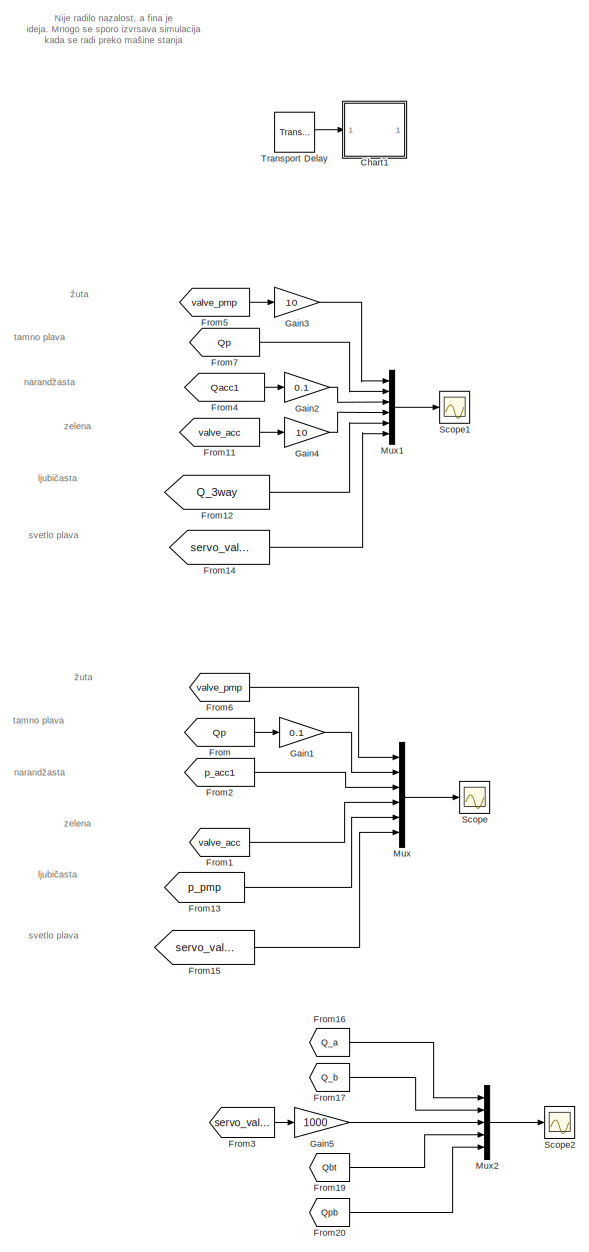
[diagram: root canvas - part 1/2, right side, full height]
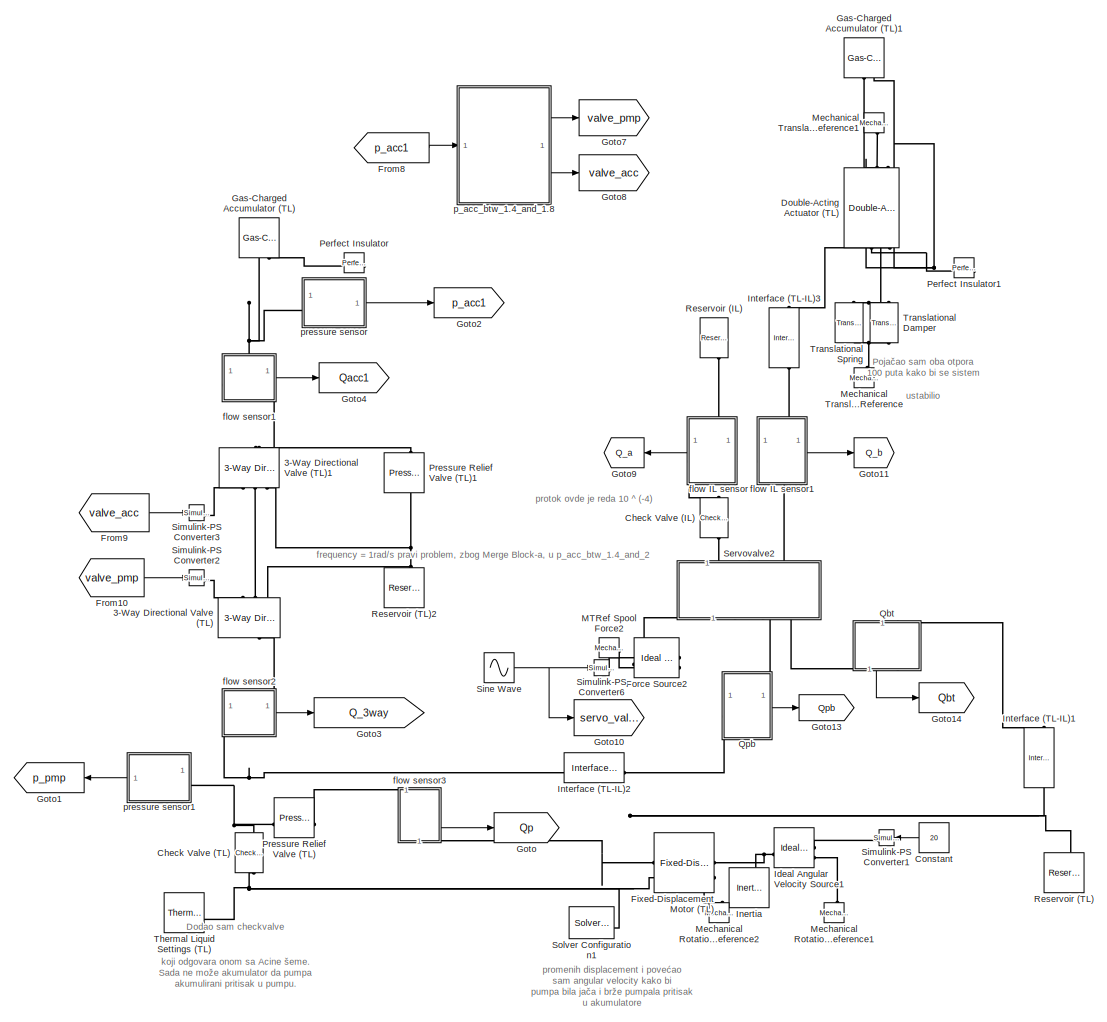
[diagram: root canvas - part 2/2, left side, full height]
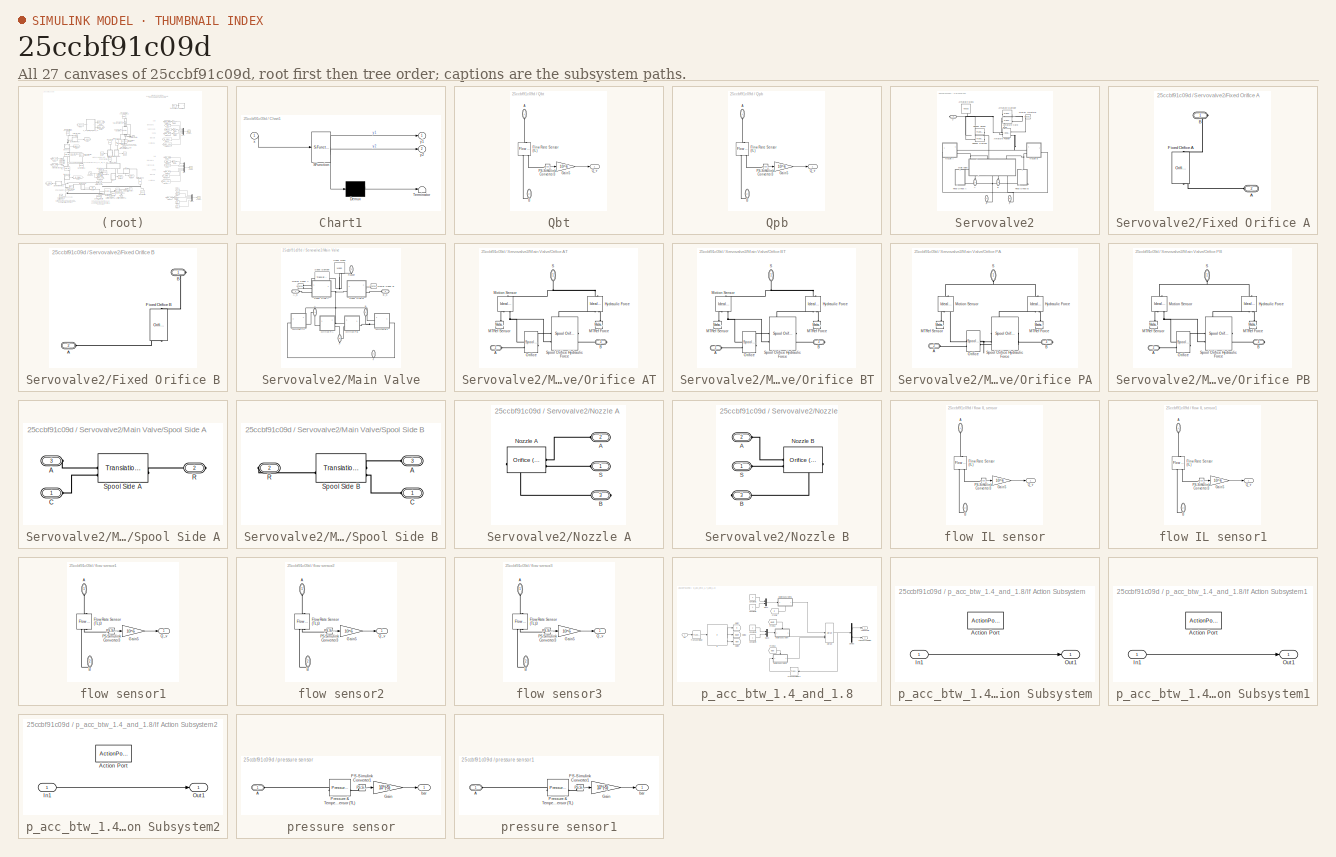
[diagram: thumbnail index - all 27 canvases of the model, root first then tree order]
MODEL slx_25ccbf91c09d
KIND model
CONFIG AbsTol = auto
CONFIG EnableMultiTasking = off
CONFIG FixedStep = auto
CONFIG MaxStep = auto
CONFIG MinStep = auto
CONFIG RelTol = 1e-3
CONFIG SampleTimeConstraint = Unconstrained
CONFIG SolverName = VariableStepAuto
CONFIG StartTime = 0.0
CONFIG StopTime = 30
BLOCK [Reference] 3-Way Directional Valve (TL)  REF=SimscapeFluids_lib/Thermal Liquid/Valves & Orifices/Directional Control
Valves/3-Way Directional
Valve (TL)
  NameLocation = left
  SourceBlock = SimscapeFluids_lib/Thermal Liquid/Valves & Orifices/Directional Control\nValves/3-Way Directional\nValve (TL)
  SourceType = 3-Way Directional\nValve (TL)
BLOCK [Reference] 3-Way Directional Valve (TL)1  REF=SimscapeFluids_lib/Thermal Liquid/Valves & Orifices/Directional Control
Valves/3-Way Directional
Valve (TL)
  NameLocation = right
  SourceBlock = SimscapeFluids_lib/Thermal Liquid/Valves & Orifices/Directional Control\nValves/3-Way Directional\nValve (TL)
  SourceType = 3-Way Directional\nValve (TL)
BLOCK [SubSystem] Chart1
  Commented = on
  ErrorFcn = Stateflow.Translate.translate
  PermitHierarchicalResolution = ExplicitOnly
  SFBlockType = Chart
  TreatAsAtomicUnit = on
BLOCK [Demux] Chart1/ Demux 
  Outputs = 1
BLOCK [S-Function] Chart1/ SFunction 
  EnableBusSupport = on
  FunctionName = sf_sfun
  PortCounts = [1 3]
  SFcnIsStateOwnerBlock = off
  SFunctionDeploymentMode = off
  Tag = Stateflow S-Function 1
BLOCK [Terminator] Chart1/ Terminator 
BLOCK [Inport] Chart1/x
BLOCK [Outport] Chart1/y1
BLOCK [Outport] Chart1/y2
  Port = 2
BLOCK [Reference] Check Valve (IL)  REF=SimscapeFluids_lib/Isothermal Liquid/Valves & Orifices/Directional Control
Valves/Check Valve (IL)
  NameLocation = left
  SourceBlock = SimscapeFluids_lib/Isothermal Liquid/Valves & Orifices/Directional Control\nValves/Check Valve (IL)
  SourceType = Check Valve (IL)
BLOCK [Reference] Check Valve (TL)  REF=SimscapeFluids_lib/Thermal Liquid/Valves & Orifices/Directional Control
Valves/Check Valve (TL)
  NameLocation = right
  SourceBlock = SimscapeFluids_lib/Thermal Liquid/Valves & Orifices/Directional Control\nValves/Check Valve (TL)
  SourceType = Check Valve (TL)
BLOCK [Constant] Constant
  NameLocation = top
  Value = 20
BLOCK [Reference] Double-Acting Actuator (TL)  REF=SimscapeFluids_lib/Thermal Liquid/Actuators/Double-Acting
Actuator (TL)
  NameLocation = left
  SourceBlock = SimscapeFluids_lib/Thermal Liquid/Actuators/Double-Acting\nActuator (TL)
  SourceType = Double-Acting\nActuator (TL)
BLOCK [Reference] Fixed-Displacement Motor (TL)  REF=SimscapeFluids_lib/Thermal Liquid/Pumps & Motors/Fixed-Displacement
Motor (TL)
  SourceBlock = SimscapeFluids_lib/Thermal Liquid/Pumps & Motors/Fixed-Displacement\nMotor (TL)
  SourceType = Fixed-Displacement\nMotor (TL)
BLOCK [Reference] Force Source2  REF=fl_lib/Mechanical/Mechanical Sources/Ideal Force Source
  SourceBlock = fl_lib/Mechanical/Mechanical Sources/Ideal Force Source
  SourceType = Ideal Force Source
  Tag = Factory Generic
BLOCK [From] From
  GotoTag = Qp
BLOCK [From] From1
  GotoTag = valve_acc
BLOCK [From] From10
  GotoTag = valve_pmp
BLOCK [From] From11
  GotoTag = valve_acc
BLOCK [From] From12
  GotoTag = Q_3way
BLOCK [From] From13
  GotoTag = p_pmp
BLOCK [From] From14
  GotoTag = servo_valve
BLOCK [From] From15
  GotoTag = servo_valve
BLOCK [From] From16
  GotoTag = Q_a
BLOCK [From] From17
  GotoTag = Q_b
BLOCK [From] From19
  GotoTag = Qbt
BLOCK [From] From2
  GotoTag = p_acc1
BLOCK [From] From20
  GotoTag = Qpb
BLOCK [From] From3
  GotoTag = servo_valve
BLOCK [From] From4
  GotoTag = Qacc1
BLOCK [From] From5
  GotoTag = valve_pmp
BLOCK [From] From6
  GotoTag = valve_pmp
BLOCK [From] From7
  GotoTag = Qp
BLOCK [From] From8
  GotoTag = p_acc1
BLOCK [From] From9
  GotoTag = valve_acc
BLOCK [Gain] Gain1
  Gain = 0.1
BLOCK [Gain] Gain2
  Gain = 0.1
BLOCK [Gain] Gain3
  Gain = 10
BLOCK [Gain] Gain4
  Gain = 10
BLOCK [Gain] Gain5
  Gain = 1000
BLOCK [Reference] Gas-Charged Accumulator (TL)  REF=SimscapeFluids_lib/Thermal Liquid/Tanks & Accumulators/Gas-Charged
Accumulator (TL)
  NameLocation = right
  SourceBlock = SimscapeFluids_lib/Thermal Liquid/Tanks & Accumulators/Gas-Charged\nAccumulator (TL)
  SourceType = Gas-Charged\nAccumulator (TL)
BLOCK [Reference] Gas-Charged Accumulator (TL)1  REF=SimscapeFluids_lib/Thermal Liquid/Tanks & Accumulators/Gas-Charged
Accumulator (TL)
  NameLocation = right
  SourceBlock = SimscapeFluids_lib/Thermal Liquid/Tanks & Accumulators/Gas-Charged\nAccumulator (TL)
  SourceType = Gas-Charged\nAccumulator (TL)
BLOCK [Goto] Goto
  GotoTag = Qp
BLOCK [Goto] Goto1
  GotoTag = p_pmp
  NameLocation = top
BLOCK [Goto] Goto10
  GotoTag = servo_valve
BLOCK [Goto] Goto11
  GotoTag = Q_b
BLOCK [Goto] Goto13
  GotoTag = Qpb
BLOCK [Goto] Goto14
  GotoTag = Qbt
BLOCK [Goto] Goto2
  GotoTag = p_acc1
BLOCK [Goto] Goto3
  GotoTag = Q_3way
BLOCK [Goto] Goto4
  GotoTag = Qacc1
BLOCK [Goto] Goto7
  GotoTag = valve_pmp
BLOCK [Goto] Goto8
  GotoTag = valve_acc
BLOCK [Goto] Goto9
  GotoTag = Q_a
  NameLocation = top
BLOCK [Reference] Ideal Angular Velocity Source1  REF=fl_lib/Mechanical/Mechanical Sources/Ideal Angular
Velocity Source
  SourceBlock = fl_lib/Mechanical/Mechanical Sources/Ideal Angular\nVelocity Source
  SourceType = Ideal Angular\nVelocity Source
BLOCK [Reference] Inertia  REF=fl_lib/Mechanical/Rotational Elements/Inertia
  NameLocation = right
  SourceBlock = fl_lib/Mechanical/Rotational Elements/Inertia
  SourceType = Inertia
BLOCK [Reference] Interface (TL-IL)1  REF=SimscapeFluids_lib/Fluid Network
Interfaces/Interface (TL-IL)
  NameLocation = right
  SourceBlock = SimscapeFluids_lib/Fluid Network\nInterfaces/Interface (TL-IL)
  SourceType = Interface (TL-IL)
BLOCK [Reference] Interface (TL-IL)2  REF=SimscapeFluids_lib/Fluid Network
Interfaces/Interface (TL-IL)
  SourceBlock = SimscapeFluids_lib/Fluid Network\nInterfaces/Interface (TL-IL)
  SourceType = Interface (TL-IL)
BLOCK [Reference] Interface (TL-IL)3  REF=SimscapeFluids_lib/Fluid Network
Interfaces/Interface (TL-IL)
  NameLocation = left
  SourceBlock = SimscapeFluids_lib/Fluid Network\nInterfaces/Interface (TL-IL)
  SourceType = Interface (TL-IL)
BLOCK [Reference] MTRef Spool Force2  REF=fl_lib/Mechanical/Translational
Elements/Mechanical
Translational
Reference
  SourceBlock = fl_lib/Mechanical/Translational\nElements/Mechanical\nTranslational\nReference
  SourceType = Mechanical\nTranslational\nReference
  Tag = Factory Generic
BLOCK [Reference] Mechanical Rotational Reference1  REF=fl_lib/Mechanical/Rotational Elements/Mechanical
Rotational Reference
  NameLocation = right
  SourceBlock = fl_lib/Mechanical/Rotational Elements/Mechanical\nRotational Reference
  SourceType = Mechanical\nRotational Reference
BLOCK [Reference] Mechanical Rotational Reference2  REF=fl_lib/Mechanical/Rotational Elements/Mechanical
Rotational Reference
  NameLocation = right
  SourceBlock = fl_lib/Mechanical/Rotational Elements/Mechanical\nRotational Reference
  SourceType = Mechanical\nRotational Reference
BLOCK [Reference] Mechanical Translational Reference  REF=fl_lib/Mechanical/Translational
Elements/Mechanical
Translational
Reference
  NameLocation = right
  SourceBlock = fl_lib/Mechanical/Translational\nElements/Mechanical\nTranslational\nReference
  SourceType = Mechanical\nTranslational\nReference
BLOCK [Reference] Mechanical Translational Reference1  REF=fl_lib/Mechanical/Translational
Elements/Mechanical
Translational
Reference
  NameLocation = left
  SourceBlock = fl_lib/Mechanical/Translational\nElements/Mechanical\nTranslational\nReference
  SourceType = Mechanical\nTranslational\nReference
BLOCK [Mux] Mux
  DisplayOption = bar
  Inputs = 6
BLOCK [Mux] Mux1
  DisplayOption = bar
  Inputs = 6
BLOCK [Mux] Mux2
  DisplayOption = bar
  Inputs = 5
BLOCK [Reference] Perfect Insulator  REF=fl_lib/Thermal/Thermal Elements/Perfect Insulator
  NameLocation = top
  SourceBlock = fl_lib/Thermal/Thermal Elements/Perfect Insulator
  SourceType = Perfect Insulator
BLOCK [Reference] Perfect Insulator1  REF=fl_lib/Thermal/Thermal Elements/Perfect Insulator
  NameLocation = top
  SourceBlock = fl_lib/Thermal/Thermal Elements/Perfect Insulator
  SourceType = Perfect Insulator
BLOCK [Reference] Pressure Relief Valve (TL)  REF=SimscapeFluids_lib/Thermal Liquid/Valves & Orifices/Pressure Control
Valves/Pressure Relief
Valve (TL)
  SourceBlock = SimscapeFluids_lib/Thermal Liquid/Valves & Orifices/Pressure Control\nValves/Pressure Relief\nValve (TL)
  SourceType = Pressure Relief\nValve (TL)
BLOCK [Reference] Pressure Relief Valve (TL)1  REF=SimscapeFluids_lib/Thermal Liquid/Valves & Orifices/Pressure Control
Valves/Pressure Relief
Valve (TL)
  NameLocation = left
  SourceBlock = SimscapeFluids_lib/Thermal Liquid/Valves & Orifices/Pressure Control\nValves/Pressure Relief\nValve (TL)
  SourceType = Pressure Relief\nValve (TL)
BLOCK [SubSystem] Qbt
  NameLocation = right
  PortSchema = {"entries":[{"content":{"sides":[{"content":{"connectorIds":["Out1"]},"type":"ConnectorPlacement.EquallySpacedRectSide","uuid":"6ff17596-5534-4320-afa6-0357b731a888"},{"content":{"side":"RIGHT"},"type":"ConnectorPlacement.EquallySpacedRectSide","uuid":"d0148cca-8559-4eae-a2d7-b1f870587941"},{"content":{"connectorIds":["LConn1"],"side":"TOP"},"type":"ConnectorPlacement.EquallySpacedRectSide","uuid"...<+377ch>  <repeated x3 — deduplicated; at blocks: Qbt, Qpb, flow IL sensor1>
BLOCK [PMIOPort] Qbt/A
  NameLocation = left
  Side = Left
BLOCK [PMIOPort] Qbt/B
  NameLocation = right
  Port = 2
  Side = Right
BLOCK [Reference] Qbt/Flow Rate Sensor (IL)  REF=fl_lib/Isothermal Liquid/Sensors/Flow Rate Sensor
(IL)
  NameLocation = left
  SourceBlock = fl_lib/Isothermal Liquid/Sensors/Flow Rate Sensor\n(IL)
  SourceType = Flow Rate Sensor\n(IL)
BLOCK [Gain] Qbt/Gain5
  Gain = 10^6
BLOCK [Reference] Qbt/PS-Simulink Converter3  REF=nesl_utility/PS-Simulink
Converter
  SourceBlock = nesl_utility/PS-Simulink\nConverter
  SourceType = PS-Simulink\nConverter
BLOCK [Outport] Qbt/Q_v
BLOCK [SubSystem] Qpb
  NameLocation = top
BLOCK [PMIOPort] Qpb/A
  NameLocation = left
  Side = Left
BLOCK [PMIOPort] Qpb/B
  NameLocation = right
  Port = 2
  Side = Right
BLOCK [Reference] Qpb/Flow Rate Sensor (IL)  REF=fl_lib/Isothermal Liquid/Sensors/Flow Rate Sensor
(IL)
  NameLocation = left
  SourceBlock = fl_lib/Isothermal Liquid/Sensors/Flow Rate Sensor\n(IL)
  SourceType = Flow Rate Sensor\n(IL)
BLOCK [Gain] Qpb/Gain5
  Gain = 10^6
BLOCK [Reference] Qpb/PS-Simulink Converter3  REF=nesl_utility/PS-Simulink
Converter
  SourceBlock = nesl_utility/PS-Simulink\nConverter
  SourceType = PS-Simulink\nConverter
BLOCK [Outport] Qpb/Q_v
BLOCK [Reference] Reservoir (IL)  REF=fl_lib/Isothermal Liquid/Elements/Reservoir (IL)
  NameLocation = left
  SourceBlock = fl_lib/Isothermal Liquid/Elements/Reservoir (IL)
  SourceType = Reservoir (IL)
BLOCK [Reference] Reservoir (TL)  REF=fl_lib/Thermal Liquid/Elements/Reservoir (TL)
  NameLocation = right
  SourceBlock = fl_lib/Thermal Liquid/Elements/Reservoir (TL)
  SourceType = Reservoir (TL)
BLOCK [Reference] Reservoir (TL)2  REF=fl_lib/Thermal Liquid/Elements/Reservoir (TL)
  NameLocation = right
  SourceBlock = fl_lib/Thermal Liquid/Elements/Reservoir (TL)
  SourceType = Reservoir (TL)
BLOCK [Scope] Scope
  Floating = off
  NumInputPorts = 1
  ScopeSpecificationString = Simulink.scopes.TimeScopeBlockCfg('CurrentConfiguration', extmgr.ConfigurationSet(extmgr.Configuration('Core','General UI',true),extmgr.Configuration('Core','Source UI',true),extmgr.Configuration('Sources','WiredSimulink',true),extmgr.Configuration('Visuals','Time Domain',true,'SerializedDisplays',{struct('MinYLimReal','-2.37296','MaxYLimReal','11.35662','YLabelReal','','MinYLimMag','0.00000','Max...<+1756ch>
BLOCK [Scope] Scope1
  Floating = off
  NumInputPorts = 1
  ScopeSpecificationString = Simulink.scopes.TimeScopeBlockCfg('CurrentConfiguration', extmgr.ConfigurationSet(extmgr.Configuration('Core','General UI',true),extmgr.Configuration('Core','Source UI',true),extmgr.Configuration('Sources','WiredSimulink',true,'DataLoggingVariableName','ScopeData1'),extmgr.Configuration('Visuals','Time Domain',true,'SerializedDisplays',{struct('MinYLimReal','-59.99037','MaxYLimReal','287.3217','YL...<+1687ch>
BLOCK [Scope] Scope2
  Floating = off
  NumInputPorts = 1
  ScopeSpecificationString = Simulink.scopes.TimeScopeBlockCfg('CurrentConfiguration', extmgr.ConfigurationSet(extmgr.Configuration('Core','General UI',true),extmgr.Configuration('Core','Source UI',true),extmgr.Configuration('Sources','WiredSimulink',true,'DataLoggingVariableName','ScopeData1'),extmgr.Configuration('Visuals','Time Domain',true,'SerializedDisplays',{struct('MinYLimReal','-1249.99083','MaxYLimReal','1249.99898'...<+1582ch>
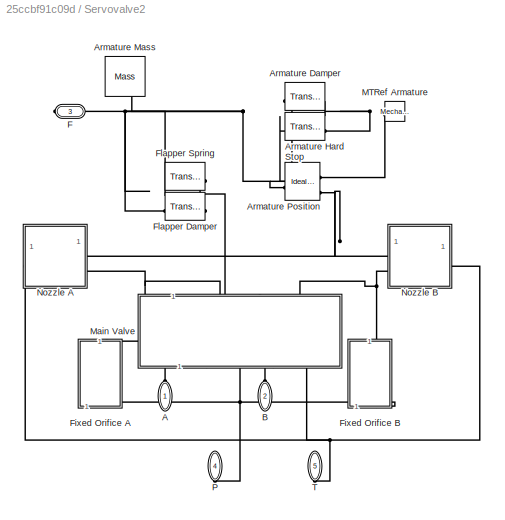
BLOCK [SubSystem] Servovalve2
  NameLocation = right
  Tag = PublishSubsystem
BLOCK [PMIOPort] Servovalve2/A
  NameLocation = left
  Side = Left
BLOCK [Reference] Servovalve2/Armature Damper  REF=fl_lib/Mechanical/Translational
Elements/Translational Damper
  NameLocation = top
  SourceBlock = fl_lib/Mechanical/Translational\nElements/Translational Damper
  SourceType = Translational Damper
  Tag = Factory Generic
BLOCK [Reference] Servovalve2/Armature Hard Stop  REF=fl_lib/Mechanical/Translational
Elements/Translational Hard
Stop
  SourceBlock = fl_lib/Mechanical/Translational\nElements/Translational Hard\nStop
  SourceType = Translational Hard\nStop
  Tag = Factory Generic
BLOCK [Reference] Servovalve2/Armature Mass  REF=fl_lib/Mechanical/Translational
Elements/Mass
  NameLocation = left
  SourceBlock = fl_lib/Mechanical/Translational\nElements/Mass
  SourceType = Mass
  Tag = Factory Generic
BLOCK [Reference] Servovalve2/Armature Position  REF=fl_lib/Mechanical/Mechanical Sensors/Ideal Translational
Motion Sensor
  SourceBlock = fl_lib/Mechanical/Mechanical Sensors/Ideal Translational\nMotion Sensor
  SourceType = Ideal Translational\nMotion Sensor
  Tag = Factory Generic
BLOCK [PMIOPort] Servovalve2/B
  NameLocation = left
  Port = 2
  Side = Left
BLOCK [PMIOPort] Servovalve2/F
  Port = 3
  Side = Right
BLOCK [SubSystem] Servovalve2/Fixed Orifice A
BLOCK [PMIOPort] Servovalve2/Fixed Orifice A/A
  Port = 2
  Side = Left
BLOCK [PMIOPort] Servovalve2/Fixed Orifice A/B
  Side = Right
BLOCK [Reference] Servovalve2/Fixed Orifice A/Fixed Orifice A  REF=SimscapeFluids_lib/Isothermal Liquid/Valves & Orifices/Orifices/Orifice (IL)
  NameLocation = left
  SourceBlock = SimscapeFluids_lib/Isothermal Liquid/Valves & Orifices/Orifices/Orifice (IL)
  SourceType = Orifice (IL)
  Tag = Factory Generic
BLOCK [SubSystem] Servovalve2/Fixed Orifice B
BLOCK [PMIOPort] Servovalve2/Fixed Orifice B/A
  Port = 2
  Side = Left
BLOCK [PMIOPort] Servovalve2/Fixed Orifice B/B
  Side = Right
BLOCK [Reference] Servovalve2/Fixed Orifice B/Fixed Orifice B  REF=SimscapeFluids_lib/Isothermal Liquid/Valves & Orifices/Orifices/Orifice (IL)
  NameLocation = right
  SourceBlock = SimscapeFluids_lib/Isothermal Liquid/Valves & Orifices/Orifices/Orifice (IL)
  SourceType = Orifice (IL)
  Tag = Factory Generic
BLOCK [Reference] Servovalve2/Flapper Damper  REF=fl_lib/Mechanical/Translational
Elements/Translational Damper
  SourceBlock = fl_lib/Mechanical/Translational\nElements/Translational Damper
  SourceType = Translational Damper
  Tag = Factory Generic
BLOCK [Reference] Servovalve2/Flapper Spring  REF=fl_lib/Mechanical/Translational
Elements/Translational Spring
  NameLocation = top
  SourceBlock = fl_lib/Mechanical/Translational\nElements/Translational Spring
  SourceType = Translational Spring
  Tag = Factory Generic
BLOCK [Reference] Servovalve2/MTRef Armature  REF=fl_lib/Mechanical/Translational
Elements/Mechanical
Translational
Reference
  NameLocation = top
  SourceBlock = fl_lib/Mechanical/Translational\nElements/Mechanical\nTranslational\nReference
  SourceType = Mechanical\nTranslational\nReference
  Tag = Factory Generic
BLOCK [SubSystem] Servovalve2/Main Valve
  NameLocation = left
  Tag = PublishSubsystem
BLOCK [PMIOPort] Servovalve2/Main Valve/A
  NameLocation = right
  Port = 4
  Side = Right
BLOCK [PMIOPort] Servovalve2/Main Valve/A_S
  Side = Left
BLOCK [PMIOPort] Servovalve2/Main Valve/B
  NameLocation = left
  Port = 6
  Side = Right
BLOCK [PMIOPort] Servovalve2/Main Valve/B_S
  Port = 3
  Side = Left
BLOCK [PMIOPort] Servovalve2/Main Valve/Flapper
  NameLocation = right
  Port = 2
  Side = Left
BLOCK [Reference] Servovalve2/Main Valve/MTRef Spool A  REF=fl_lib/Mechanical/Translational
Elements/Mechanical
Translational
Reference
  NameLocation = top
  SourceBlock = fl_lib/Mechanical/Translational\nElements/Mechanical\nTranslational\nReference
  SourceType = Mechanical\nTranslational\nReference
  Tag = Factory Generic
BLOCK [Reference] Servovalve2/Main Valve/MTRef Spool B  REF=fl_lib/Mechanical/Translational
Elements/Mechanical
Translational
Reference
  NameLocation = top
  SourceBlock = fl_lib/Mechanical/Translational\nElements/Mechanical\nTranslational\nReference
  SourceType = Mechanical\nTranslational\nReference
  Tag = Factory Generic
BLOCK [SubSystem] Servovalve2/Main Valve/Orifice AT
  Tag = PublishSubsystem
BLOCK [PMIOPort] Servovalve2/Main Valve/Orifice AT/A
  Port = 2
  Side = Left
BLOCK [PMIOPort] Servovalve2/Main Valve/Orifice AT/B
  Port = 3
  Side = Right
BLOCK [Reference] Servovalve2/Main Valve/Orifice AT/Hydraulic Force  REF=fl_lib/Mechanical/Mechanical Sources/Ideal Force Source
  NameLocation = left
  SourceBlock = fl_lib/Mechanical/Mechanical Sources/Ideal Force Source
  SourceType = Ideal Force Source
  Tag = Factory Generic
BLOCK [Reference] Servovalve2/Main Valve/Orifice AT/MTRef Force  REF=fl_lib/Mechanical/Translational
Elements/Mechanical
Translational
Reference
  NameLocation = right
  SourceBlock = fl_lib/Mechanical/Translational\nElements/Mechanical\nTranslational\nReference
  SourceType = Mechanical\nTranslational\nReference
  Tag = Factory Generic
BLOCK [Reference] Servovalve2/Main Valve/Orifice AT/MTRef Sensor  REF=fl_lib/Mechanical/Translational
Elements/Mechanical
Translational
Reference
  NameLocation = left
  SourceBlock = fl_lib/Mechanical/Translational\nElements/Mechanical\nTranslational\nReference
  SourceType = Mechanical\nTranslational\nReference
  Tag = Factory Generic
BLOCK [Reference] Servovalve2/Main Valve/Orifice AT/Motion Sensor  REF=fl_lib/Mechanical/Mechanical Sensors/Ideal Translational
Motion Sensor
  NameLocation = right
  SourceBlock = fl_lib/Mechanical/Mechanical Sensors/Ideal Translational\nMotion Sensor
  SourceType = Ideal Translational\nMotion Sensor
  Tag = Factory Generic
BLOCK [Reference] Servovalve2/Main Valve/Orifice AT/Orifice  REF=SimscapeFluids_lib/Isothermal Liquid/Valves & Orifices/Orifices/Spool Orifice (IL)
  SourceBlock = SimscapeFluids_lib/Isothermal Liquid/Valves & Orifices/Orifices/Spool Orifice (IL)
  SourceType = Spool Orifice (IL)
  Tag = Factory Generic
BLOCK [PMIOPort] Servovalve2/Main Valve/Orifice AT/S
  NameLocation = left
  Side = Left
BLOCK [Reference] Servovalve2/Main Valve/Orifice AT/Spool Orifice Hydraulic Force  REF=SimscapeFluids_lib/Isothermal Liquid/Valves & Orifices/Valve Actuators &
Forces/Spool Orifice Flow
Force (IL)
  LibrarySourceBlock = SimscapeFluids_lib/Isothermal Liquid/Valves & Orifices/Valve Actuators & Forces/Spool Orifice Flow Force (IL)
  SourceBlock = SimscapeFluids_lib/Isothermal Liquid/Valves & Orifices/Valve Actuators &\nForces/Spool Orifice Flow\nForce (IL)
  SourceType = Spool Orifice Flow\nForce (IL)
BLOCK [SubSystem] Servovalve2/Main Valve/Orifice BT
BLOCK [PMIOPort] Servovalve2/Main Valve/Orifice BT/A
  Port = 2
  Side = Left
BLOCK [PMIOPort] Servovalve2/Main Valve/Orifice BT/B
  Port = 3
  Side = Right
BLOCK [Reference] Servovalve2/Main Valve/Orifice BT/Hydraulic Force  REF=fl_lib/Mechanical/Mechanical Sources/Ideal Force Source
  NameLocation = right
  SourceBlock = fl_lib/Mechanical/Mechanical Sources/Ideal Force Source
  SourceType = Ideal Force Source
  Tag = Factory Generic
BLOCK [Reference] Servovalve2/Main Valve/Orifice BT/MTRef Force  REF=fl_lib/Mechanical/Translational
Elements/Mechanical
Translational
Reference
  NameLocation = right
  SourceBlock = fl_lib/Mechanical/Translational\nElements/Mechanical\nTranslational\nReference
  SourceType = Mechanical\nTranslational\nReference
  Tag = Factory Generic
BLOCK [Reference] Servovalve2/Main Valve/Orifice BT/MTRef Sensor  REF=fl_lib/Mechanical/Translational
Elements/Mechanical
Translational
Reference
  NameLocation = left
  SourceBlock = fl_lib/Mechanical/Translational\nElements/Mechanical\nTranslational\nReference
  SourceType = Mechanical\nTranslational\nReference
  Tag = Factory Generic
BLOCK [Reference] Servovalve2/Main Valve/Orifice BT/Motion Sensor  REF=fl_lib/Mechanical/Mechanical Sensors/Ideal Translational
Motion Sensor
  NameLocation = right
  SourceBlock = fl_lib/Mechanical/Mechanical Sensors/Ideal Translational\nMotion Sensor
  SourceType = Ideal Translational\nMotion Sensor
  Tag = Factory Generic
BLOCK [Reference] Servovalve2/Main Valve/Orifice BT/Orifice  REF=SimscapeFluids_lib/Isothermal Liquid/Valves & Orifices/Orifices/Spool Orifice (IL)
  SourceBlock = SimscapeFluids_lib/Isothermal Liquid/Valves & Orifices/Orifices/Spool Orifice (IL)
  SourceType = Spool Orifice (IL)
  Tag = Factory Generic
BLOCK [PMIOPort] Servovalve2/Main Valve/Orifice BT/S
  NameLocation = left
  Side = Left
BLOCK [Reference] Servovalve2/Main Valve/Orifice BT/Spool Orifice Hydraulic Force  REF=SimscapeFluids_lib/Isothermal Liquid/Valves & Orifices/Valve Actuators &
Forces/Spool Orifice Flow
Force (IL)
  LibrarySourceBlock = SimscapeFluids_lib/Isothermal Liquid/Valves & Orifices/Valve Actuators & Forces/Spool Orifice Flow Force (IL)
  SourceBlock = SimscapeFluids_lib/Isothermal Liquid/Valves & Orifices/Valve Actuators &\nForces/Spool Orifice Flow\nForce (IL)
  SourceType = Spool Orifice Flow\nForce (IL)
BLOCK [SubSystem] Servovalve2/Main Valve/Orifice PA
BLOCK [PMIOPort] Servovalve2/Main Valve/Orifice PA/A
  Port = 2
  Side = Left
BLOCK [PMIOPort] Servovalve2/Main Valve/Orifice PA/B
  Port = 3
  Side = Right
BLOCK [Reference] Servovalve2/Main Valve/Orifice PA/Hydraulic Force  REF=fl_lib/Mechanical/Mechanical Sources/Ideal Force Source
  NameLocation = left
  SourceBlock = fl_lib/Mechanical/Mechanical Sources/Ideal Force Source
  SourceType = Ideal Force Source
  Tag = Factory Generic
BLOCK [Reference] Servovalve2/Main Valve/Orifice PA/MTRef Force  REF=fl_lib/Mechanical/Translational
Elements/Mechanical
Translational
Reference
  NameLocation = right
  SourceBlock = fl_lib/Mechanical/Translational\nElements/Mechanical\nTranslational\nReference
  SourceType = Mechanical\nTranslational\nReference
  Tag = Factory Generic
BLOCK [Reference] Servovalve2/Main Valve/Orifice PA/MTRef Sensor  REF=fl_lib/Mechanical/Translational
Elements/Mechanical
Translational
Reference
  NameLocation = left
  SourceBlock = fl_lib/Mechanical/Translational\nElements/Mechanical\nTranslational\nReference
  SourceType = Mechanical\nTranslational\nReference
  Tag = Factory Generic
BLOCK [Reference] Servovalve2/Main Valve/Orifice PA/Motion Sensor  REF=fl_lib/Mechanical/Mechanical Sensors/Ideal Translational
Motion Sensor
  NameLocation = right
  SourceBlock = fl_lib/Mechanical/Mechanical Sensors/Ideal Translational\nMotion Sensor
  SourceType = Ideal Translational\nMotion Sensor
  Tag = Factory Generic
BLOCK [Reference] Servovalve2/Main Valve/Orifice PA/Orifice  REF=SimscapeFluids_lib/Isothermal Liquid/Valves & Orifices/Orifices/Spool Orifice (IL)
  SourceBlock = SimscapeFluids_lib/Isothermal Liquid/Valves & Orifices/Orifices/Spool Orifice (IL)
  SourceType = Spool Orifice (IL)
  Tag = Factory Generic
BLOCK [PMIOPort] Servovalve2/Main Valve/Orifice PA/S
  NameLocation = left
  Side = Left
BLOCK [Reference] Servovalve2/Main Valve/Orifice PA/Spool Orifice Hydraulic Force  REF=SimscapeFluids_lib/Isothermal Liquid/Valves & Orifices/Valve Actuators &
Forces/Spool Orifice Flow
Force (IL)
  LibrarySourceBlock = SimscapeFluids_lib/Isothermal Liquid/Valves & Orifices/Valve Actuators & Forces/Spool Orifice Flow Force (IL)
  SourceBlock = SimscapeFluids_lib/Isothermal Liquid/Valves & Orifices/Valve Actuators &\nForces/Spool Orifice Flow\nForce (IL)
  SourceType = Spool Orifice Flow\nForce (IL)
BLOCK [SubSystem] Servovalve2/Main Valve/Orifice PB
BLOCK [PMIOPort] Servovalve2/Main Valve/Orifice PB/A
  Port = 2
  Side = Left
BLOCK [PMIOPort] Servovalve2/Main Valve/Orifice PB/B
  Port = 3
  Side = Right
BLOCK [Reference] Servovalve2/Main Valve/Orifice PB/Hydraulic Force  REF=fl_lib/Mechanical/Mechanical Sources/Ideal Force Source
  NameLocation = left
  SourceBlock = fl_lib/Mechanical/Mechanical Sources/Ideal Force Source
  SourceType = Ideal Force Source
  Tag = Factory Generic
BLOCK [Reference] Servovalve2/Main Valve/Orifice PB/MTRef Force  REF=fl_lib/Mechanical/Translational
Elements/Mechanical
Translational
Reference
  NameLocation = right
  SourceBlock = fl_lib/Mechanical/Translational\nElements/Mechanical\nTranslational\nReference
  SourceType = Mechanical\nTranslational\nReference
  Tag = Factory Generic
BLOCK [Reference] Servovalve2/Main Valve/Orifice PB/MTRef Sensor  REF=fl_lib/Mechanical/Translational
Elements/Mechanical
Translational
Reference
  NameLocation = left
  SourceBlock = fl_lib/Mechanical/Translational\nElements/Mechanical\nTranslational\nReference
  SourceType = Mechanical\nTranslational\nReference
  Tag = Factory Generic
BLOCK [Reference] Servovalve2/Main Valve/Orifice PB/Motion Sensor  REF=fl_lib/Mechanical/Mechanical Sensors/Ideal Translational
Motion Sensor
  NameLocation = right
  SourceBlock = fl_lib/Mechanical/Mechanical Sensors/Ideal Translational\nMotion Sensor
  SourceType = Ideal Translational\nMotion Sensor
  Tag = Factory Generic
BLOCK [Reference] Servovalve2/Main Valve/Orifice PB/Orifice  REF=SimscapeFluids_lib/Isothermal Liquid/Valves & Orifices/Orifices/Spool Orifice (IL)
  SourceBlock = SimscapeFluids_lib/Isothermal Liquid/Valves & Orifices/Orifices/Spool Orifice (IL)
  SourceType = Spool Orifice (IL)
  Tag = Factory Generic
BLOCK [PMIOPort] Servovalve2/Main Valve/Orifice PB/S
  NameLocation = left
  Side = Left
BLOCK [Reference] Servovalve2/Main Valve/Orifice PB/Spool Orifice Hydraulic Force  REF=SimscapeFluids_lib/Isothermal Liquid/Valves & Orifices/Valve Actuators &
Forces/Spool Orifice Flow
Force (IL)
  LibrarySourceBlock = SimscapeFluids_lib/Isothermal Liquid/Valves & Orifices/Valve Actuators & Forces/Spool Orifice Flow Force (IL)
  SourceBlock = SimscapeFluids_lib/Isothermal Liquid/Valves & Orifices/Valve Actuators &\nForces/Spool Orifice Flow\nForce (IL)
  SourceType = Spool Orifice Flow\nForce (IL)
BLOCK [PMIOPort] Servovalve2/Main Valve/P
  NameLocation = right
  Port = 5
  Side = Right
BLOCK [Reference] Servovalve2/Main Valve/Spool Damper  REF=fl_lib/Mechanical/Translational
Elements/Translational Damper
  NameLocation = top
  SourceBlock = fl_lib/Mechanical/Translational\nElements/Translational Damper
  SourceType = Translational Damper
  Tag = Factory Generic
BLOCK [Reference] Servovalve2/Main Valve/Spool Mass  REF=fl_lib/Mechanical/Translational
Elements/Mass
  NameLocation = left
  SourceBlock = fl_lib/Mechanical/Translational\nElements/Mass
  SourceType = Mass
  Tag = Factory Generic
BLOCK [SubSystem] Servovalve2/Main Valve/Spool Side A
BLOCK [PMIOPort] Servovalve2/Main Valve/Spool Side A/A
  Port = 3
  Side = Left
BLOCK [PMIOPort] Servovalve2/Main Valve/Spool Side A/C
  Side = Left
BLOCK [PMIOPort] Servovalve2/Main Valve/Spool Side A/R
  Port = 2
  Side = Right
BLOCK [Reference] Servovalve2/Main Valve/Spool Side A/Spool Side A  REF=fl_lib/Isothermal Liquid/Elements/Translational
Mechanical Converter
(IL)
  LibrarySourceBlock = fl_lib/Isothermal Liquid/Elements/Translational Mechanical Converter (IL)
  SourceBlock = fl_lib/Isothermal Liquid/Elements/Translational\nMechanical Converter\n(IL)
  SourceType = Translational\nMechanical Converter\n(IL)
  Tag = Factory Generic
BLOCK [SubSystem] Servovalve2/Main Valve/Spool Side B
BLOCK [PMIOPort] Servovalve2/Main Valve/Spool Side B/A
  Port = 3
  Side = Left
BLOCK [PMIOPort] Servovalve2/Main Valve/Spool Side B/C
  Side = Left
BLOCK [PMIOPort] Servovalve2/Main Valve/Spool Side B/R
  Port = 2
  Side = Right
BLOCK [Reference] Servovalve2/Main Valve/Spool Side B/Spool Side B  REF=fl_lib/Isothermal Liquid/Elements/Translational
Mechanical Converter
(IL)
  LibrarySourceBlock = fl_lib/Isothermal Liquid/Elements/Translational Mechanical Converter (IL)
  SourceBlock = fl_lib/Isothermal Liquid/Elements/Translational\nMechanical Converter\n(IL)
  SourceType = Translational\nMechanical Converter\n(IL)
  Tag = Factory Generic
BLOCK [PMIOPort] Servovalve2/Main Valve/T
  NameLocation = left
  Port = 7
  Side = Right
BLOCK [SubSystem] Servovalve2/Nozzle A
BLOCK [PMIOPort] Servovalve2/Nozzle A/A
  Port = 2
  Side = Left
BLOCK [PMIOPort] Servovalve2/Nozzle A/B
  Port = 3
  Side = Right
BLOCK [Reference] Servovalve2/Nozzle A/Nozzle A  REF=SimscapeFluids_lib/Isothermal Liquid/Valves & Orifices/Orifices/Orifice (IL)
  NameLocation = top
  SourceBlock = SimscapeFluids_lib/Isothermal Liquid/Valves & Orifices/Orifices/Orifice (IL)
  SourceType = Orifice (IL)
  Tag = Factory Generic
BLOCK [PMIOPort] Servovalve2/Nozzle A/S
  Side = Left
BLOCK [SubSystem] Servovalve2/Nozzle B
BLOCK [PMIOPort] Servovalve2/Nozzle B/A
  Port = 2
  Side = Left
BLOCK [PMIOPort] Servovalve2/Nozzle B/B
  Port = 3
  Side = Right
BLOCK [Reference] Servovalve2/Nozzle B/Nozzle B  REF=SimscapeFluids_lib/Isothermal Liquid/Valves & Orifices/Orifices/Orifice (IL)
  NameLocation = top
  SourceBlock = SimscapeFluids_lib/Isothermal Liquid/Valves & Orifices/Orifices/Orifice (IL)
  SourceType = Orifice (IL)
  Tag = Factory Generic
BLOCK [PMIOPort] Servovalve2/Nozzle B/S
  Side = Left
BLOCK [PMIOPort] Servovalve2/P
  NameLocation = right
  Port = 4
  Side = Right
BLOCK [PMIOPort] Servovalve2/T
  NameLocation = right
  Port = 5
  Side = Right
BLOCK [Reference] Simulink-PS Converter1  REF=nesl_utility/Simulink-PS
Converter
  NameLocation = top
  SourceBlock = nesl_utility/Simulink-PS\nConverter
  SourceType = Simulink-PS\nConverter
BLOCK [Reference] Simulink-PS Converter2  REF=nesl_utility/Simulink-PS
Converter
  SourceBlock = nesl_utility/Simulink-PS\nConverter
  SourceType = Simulink-PS\nConverter
BLOCK [Reference] Simulink-PS Converter3  REF=nesl_utility/Simulink-PS
Converter
  SourceBlock = nesl_utility/Simulink-PS\nConverter
  SourceType = Simulink-PS\nConverter
BLOCK [Reference] Simulink-PS Converter6  REF=nesl_utility/Simulink-PS
Converter
  SourceBlock = nesl_utility/Simulink-PS\nConverter
  SourceType = Simulink-PS\nConverter
BLOCK [Sin] Sine Wave
  Frequency = 1.1
  SampleTime = 0
BLOCK [Reference] Solver Configuration1  REF=nesl_utility/Solver
Configuration
  SourceBlock = nesl_utility/Solver\nConfiguration
  SourceType = Solver\nConfiguration
BLOCK [Reference] Thermal Liquid Settings (TL)  REF=fl_lib/Thermal Liquid/Utilities/Thermal Liquid
Settings (TL)
  SourceBlock = fl_lib/Thermal Liquid/Utilities/Thermal Liquid\nSettings (TL)
  SourceType = Thermal Liquid\nSettings (TL)
BLOCK [Reference] Translational Damper  REF=fl_lib/Mechanical/Translational
Elements/Translational Damper
  NameLocation = left
  SourceBlock = fl_lib/Mechanical/Translational\nElements/Translational Damper
  SourceType = Translational Damper
BLOCK [Reference] Translational Spring  REF=fl_lib/Mechanical/Translational
Elements/Translational Spring
  NameLocation = left
  SourceBlock = fl_lib/Mechanical/Translational\nElements/Translational Spring
  SourceType = Translational Spring
BLOCK [TransportDelay] Transport Delay
  Commented = on
  DelayTime = 0.001
BLOCK [SubSystem] flow IL sensor
  NameLocation = top
  PortSchema = {"entries":[{"content":{"sides":[{"content":{},"type":"ConnectorPlacement.EquallySpacedRectSide","uuid":"6ff17596-5534-4320-afa6-0357b731a888"},{"content":{"connectorIds":["Out1"],"side":"RIGHT"},"type":"ConnectorPlacement.EquallySpacedRectSide","uuid":"d0148cca-8559-4eae-a2d7-b1f870587941"},{"content":{"connectorIds":["LConn1"],"side":"TOP"},"type":"ConnectorPlacement.EquallySpacedRectSide","uuid...<+378ch>
BLOCK [PMIOPort] flow IL sensor/A
  NameLocation = left
  Side = Left
BLOCK [PMIOPort] flow IL sensor/B
  NameLocation = right
  Port = 2
  Side = Right
BLOCK [Reference] flow IL sensor/Flow Rate Sensor (IL)  REF=fl_lib/Isothermal Liquid/Sensors/Flow Rate Sensor
(IL)
  NameLocation = left
  SourceBlock = fl_lib/Isothermal Liquid/Sensors/Flow Rate Sensor\n(IL)
  SourceType = Flow Rate Sensor\n(IL)
BLOCK [Gain] flow IL sensor/Gain5
  Gain = 10^6
BLOCK [Reference] flow IL sensor/PS-Simulink Converter3  REF=nesl_utility/PS-Simulink
Converter
  SourceBlock = nesl_utility/PS-Simulink\nConverter
  SourceType = PS-Simulink\nConverter
BLOCK [Outport] flow IL sensor/Q_v
BLOCK [SubSystem] flow IL sensor1
  NameLocation = top
BLOCK [PMIOPort] flow IL sensor1/A
  NameLocation = left
  Side = Left
BLOCK [PMIOPort] flow IL sensor1/B
  NameLocation = right
  Port = 2
  Side = Right
BLOCK [Reference] flow IL sensor1/Flow Rate Sensor (IL)  REF=fl_lib/Isothermal Liquid/Sensors/Flow Rate Sensor
(IL)
  NameLocation = left
  SourceBlock = fl_lib/Isothermal Liquid/Sensors/Flow Rate Sensor\n(IL)
  SourceType = Flow Rate Sensor\n(IL)
BLOCK [Gain] flow IL sensor1/Gain5
  Gain = 10^6
BLOCK [Reference] flow IL sensor1/PS-Simulink Converter3  REF=nesl_utility/PS-Simulink
Converter
  SourceBlock = nesl_utility/PS-Simulink\nConverter
  SourceType = PS-Simulink\nConverter
BLOCK [Outport] flow IL sensor1/Q_v
BLOCK [SubSystem] flow sensor1
  PortSchema = {"entries":[{"content":{"sides":[{"content":{},"type":"ConnectorPlacement.EquallySpacedRectSide","uuid":"64eebb38-407b-4473-bb63-6fc68657ced3"},{"content":{"connectorIds":["Out1"],"side":"RIGHT"},"type":"ConnectorPlacement.EquallySpacedRectSide","uuid":"fe4642c7-b9bb-4607-97dc-199c5570e8b5"},{"content":{"connectorIds":["LConn1"],"side":"TOP"},"type":"ConnectorPlacement.EquallySpacedRectSide","uuid...<+378ch>
BLOCK [PMIOPort] flow sensor1/A
  NameLocation = left
  Side = Left
BLOCK [PMIOPort] flow sensor1/B
  NameLocation = left
  Port = 2
  Side = Right
BLOCK [Reference] flow sensor1/Flow Rate Sensor (TL)3  REF=fl_lib/Thermal Liquid/Sensors/Flow Rate Sensor
(TL)
  NameLocation = left
  SourceBlock = fl_lib/Thermal Liquid/Sensors/Flow Rate Sensor\n(TL)
  SourceType = Flow Rate Sensor\n(TL)
BLOCK [Gain] flow sensor1/Gain5
  Gain = 10^6
BLOCK [Reference] flow sensor1/PS-Simulink Converter3  REF=nesl_utility/PS-Simulink
Converter
  SourceBlock = nesl_utility/PS-Simulink\nConverter
  SourceType = PS-Simulink\nConverter
BLOCK [Outport] flow sensor1/Q_v
BLOCK [SubSystem] flow sensor2
  NameLocation = top
  PortSchema = {"entries":[{"content":{"sides":[{"content":{"connectorIds":["Out1"]},"type":"ConnectorPlacement.EquallySpacedRectSide","uuid":"64eebb38-407b-4473-bb63-6fc68657ced3"},{"content":{"side":"RIGHT"},"type":"ConnectorPlacement.EquallySpacedRectSide","uuid":"fe4642c7-b9bb-4607-97dc-199c5570e8b5"},{"content":{"connectorIds":["LConn1"],"side":"TOP"},"type":"ConnectorPlacement.EquallySpacedRectSide","uuid"...<+377ch>
BLOCK [PMIOPort] flow sensor2/A
  NameLocation = left
  Side = Left
BLOCK [PMIOPort] flow sensor2/B
  NameLocation = left
  Port = 2
  Side = Right
BLOCK [Reference] flow sensor2/Flow Rate Sensor (TL)3  REF=fl_lib/Thermal Liquid/Sensors/Flow Rate Sensor
(TL)
  NameLocation = left
  SourceBlock = fl_lib/Thermal Liquid/Sensors/Flow Rate Sensor\n(TL)
  SourceType = Flow Rate Sensor\n(TL)
BLOCK [Gain] flow sensor2/Gain5
  Gain = 10^6
BLOCK [Reference] flow sensor2/PS-Simulink Converter3  REF=nesl_utility/PS-Simulink
Converter
  SourceBlock = nesl_utility/PS-Simulink\nConverter
  SourceType = PS-Simulink\nConverter
BLOCK [Outport] flow sensor2/Q_v
BLOCK [SubSystem] flow sensor3
  PortSchema = {"entries":[{"content":{"sides":[{"content":{},"type":"ConnectorPlacement.EquallySpacedRectSide","uuid":"64eebb38-407b-4473-bb63-6fc68657ced3"},{"content":{"side":"RIGHT"},"type":"ConnectorPlacement.EquallySpacedRectSide","uuid":"fe4642c7-b9bb-4607-97dc-199c5570e8b5"},{"content":{"connectorIds":["LConn1"],"side":"TOP"},"type":"ConnectorPlacement.EquallySpacedRectSide","uuid":"f27d07a7-79fc-4ae0-b6...<+361ch>
BLOCK [PMIOPort] flow sensor3/A
  NameLocation = left
  Side = Left
BLOCK [PMIOPort] flow sensor3/B
  NameLocation = left
  Port = 2
  Side = Right
BLOCK [Reference] flow sensor3/Flow Rate Sensor (TL)3  REF=fl_lib/Thermal Liquid/Sensors/Flow Rate Sensor
(TL)
  NameLocation = left
  SourceBlock = fl_lib/Thermal Liquid/Sensors/Flow Rate Sensor\n(TL)
  SourceType = Flow Rate Sensor\n(TL)
BLOCK [Gain] flow sensor3/Gain5
  Gain = 10^6
BLOCK [Reference] flow sensor3/PS-Simulink Converter3  REF=nesl_utility/PS-Simulink
Converter
  SourceBlock = nesl_utility/PS-Simulink\nConverter
  SourceType = PS-Simulink\nConverter
BLOCK [Outport] flow sensor3/Q_v
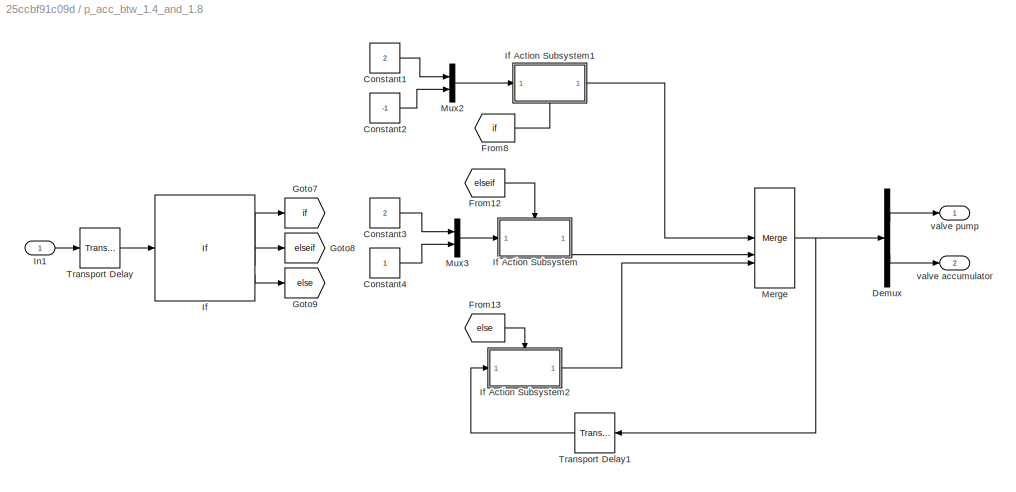
BLOCK [SubSystem] p_acc_btw_1.4_and_1.8
BLOCK [Constant] p_acc_btw_1.4_and_1.8/Constant1
  Value = 2
BLOCK [Constant] p_acc_btw_1.4_and_1.8/Constant2
  Value = -1
BLOCK [Constant] p_acc_btw_1.4_and_1.8/Constant3
  Value = 2
BLOCK [Constant] p_acc_btw_1.4_and_1.8/Constant4
BLOCK [Demux] p_acc_btw_1.4_and_1.8/Demux
  Outputs = 2
BLOCK [From] p_acc_btw_1.4_and_1.8/From12
  GotoTag = elseif
BLOCK [From] p_acc_btw_1.4_and_1.8/From13
  GotoTag = else
BLOCK [From] p_acc_btw_1.4_and_1.8/From8
  GotoTag = if
BLOCK [Goto] p_acc_btw_1.4_and_1.8/Goto7
  GotoTag = if
BLOCK [Goto] p_acc_btw_1.4_and_1.8/Goto8
  GotoTag = elseif
BLOCK [Goto] p_acc_btw_1.4_and_1.8/Goto9
  GotoTag = else
BLOCK [If] p_acc_btw_1.4_and_1.8/If
  ElseIfExpressions = u1 < 1.4
  IfExpression = u1 > 1.8
BLOCK [SubSystem] p_acc_btw_1.4_and_1.8/If Action Subsystem
  TreatAsAtomicUnit = on
BLOCK [ActionPort] p_acc_btw_1.4_and_1.8/If Action Subsystem/Action Port
  ActionPortLabel = elseif(u1 < 1.4)
BLOCK [Inport] p_acc_btw_1.4_and_1.8/If Action Subsystem/In1
BLOCK [Outport] p_acc_btw_1.4_and_1.8/If Action Subsystem/Out1
  InitialOutput = [0 0]
BLOCK [SubSystem] p_acc_btw_1.4_and_1.8/If Action Subsystem1
  NameLocation = top
  TreatAsAtomicUnit = on
BLOCK [ActionPort] p_acc_btw_1.4_and_1.8/If Action Subsystem1/Action Port
  ActionPortLabel = if(u1 > 1.8)
BLOCK [Inport] p_acc_btw_1.4_and_1.8/If Action Subsystem1/In1
BLOCK [Outport] p_acc_btw_1.4_and_1.8/If Action Subsystem1/Out1
BLOCK [SubSystem] p_acc_btw_1.4_and_1.8/If Action Subsystem2
  TreatAsAtomicUnit = on
BLOCK [ActionPort] p_acc_btw_1.4_and_1.8/If Action Subsystem2/Action Port
  ActionPortLabel = else
BLOCK [Inport] p_acc_btw_1.4_and_1.8/If Action Subsystem2/In1
BLOCK [Outport] p_acc_btw_1.4_and_1.8/If Action Subsystem2/Out1
  InitialOutput = [0 0]
BLOCK [Inport] p_acc_btw_1.4_and_1.8/In1
BLOCK [Merge] p_acc_btw_1.4_and_1.8/Merge
  Inputs = 3
BLOCK [Mux] p_acc_btw_1.4_and_1.8/Mux2
  DisplayOption = bar
  Inputs = 2
BLOCK [Mux] p_acc_btw_1.4_and_1.8/Mux3
  DisplayOption = bar
  Inputs = 2
BLOCK [TransportDelay] p_acc_btw_1.4_and_1.8/Transport Delay
  DelayTime = 0.001
BLOCK [TransportDelay] p_acc_btw_1.4_and_1.8/Transport Delay1
  DelayTime = 0.001
  NameLocation = top
BLOCK [Outport] p_acc_btw_1.4_and_1.8/valve accumulator
  Port = 2
BLOCK [Outport] p_acc_btw_1.4_and_1.8/valve pump
BLOCK [SubSystem] pressure sensor
BLOCK [PMIOPort] pressure sensor/A
  Side = Left
BLOCK [Gain] pressure sensor/Gain
  Gain = 10^(-5)
BLOCK [Reference] pressure sensor/PS-Simulink Converter1  REF=nesl_utility/PS-Simulink
Converter
  SourceBlock = nesl_utility/PS-Simulink\nConverter
  SourceType = PS-Simulink\nConverter
BLOCK [Reference] pressure sensor/Pressure & Temperature Sensor (TL)  REF=fl_lib/Thermal Liquid/Sensors/Pressure &
Temperature Sensor
(TL)
  SourceBlock = fl_lib/Thermal Liquid/Sensors/Pressure &\nTemperature Sensor\n(TL)
  SourceType = Pressure &\nTemperature Sensor\n(TL)
BLOCK [Outport] pressure sensor/bar
BLOCK [SubSystem] pressure sensor1
  NameLocation = top
BLOCK [PMIOPort] pressure sensor1/A
  Side = Left
BLOCK [Gain] pressure sensor1/Gain
  Gain = 10^(-5)
BLOCK [Reference] pressure sensor1/PS-Simulink Converter1  REF=nesl_utility/PS-Simulink
Converter
  SourceBlock = nesl_utility/PS-Simulink\nConverter
  SourceType = PS-Simulink\nConverter
BLOCK [Reference] pressure sensor1/Pressure & Temperature Sensor (TL)  REF=fl_lib/Thermal Liquid/Sensors/Pressure &
Temperature Sensor
(TL)
  SourceBlock = fl_lib/Thermal Liquid/Sensors/Pressure &\nTemperature Sensor\n(TL)
  SourceType = Pressure &\nTemperature Sensor\n(TL)
BLOCK [Outport] pressure sensor1/bar
ANNOTATION (root): frequency = 1rad/s pravi problem, zbog Merge Block-a, u p_acc_btw_1.4_and_2
ANNOTATION (root): protok ovde je reda 10 ^ (-4)
ANNOTATION (root): Dodao sam checkvalve koji odgovara onom sa Acine šeme. Sada ne može akumulator da pumpa akumulirani pritisak u pumpu.
ANNOTATION (root): promenih displacement i povećao sam angular velocity kako bi pumpa bila jača i brže pumpala pritisak u akumulatore
ANNOTATION (root): svetlo plava
ANNOTATION (root): Pojačao sam oba otpora 100 puta kako bi se sistem ustabilio
ANNOTATION (root): tamno plava
ANNOTATION (root): zelena
ANNOTATION (root): Nije radilo nazalost, a fina je ideja. Mnogo se sporo izvrsava simulacija kada se radi preko mašine stanja
ANNOTATION (root): narandžasta
ANNOTATION (root): žuta
ANNOTATION (root): ljubičasta
LINE Constant:1 -> Simulink-PS Converter1:1
LINE From10:1 -> Simulink-PS Converter2:1
LINE From11:1 -> Gain4:1
LINE From12:1 -> Mux1:5
LINE From13:1 -> Mux:5
LINE From14:1 -> Mux1:6
LINE From15:1 -> Mux:6
LINE From16:1 -> Mux2:1
LINE From17:1 -> Mux2:2
LINE From19:1 -> Mux2:4
LINE From1:1 -> Mux:4
LINE From20:1 -> Mux2:5
LINE From2:1 -> Mux:3
LINE From3:1 -> Gain5:1
LINE From4:1 -> Gain2:1
LINE From5:1 -> Gain3:1
LINE From6:1 -> Mux:1
LINE From7:1 -> Mux1:2
LINE From8:1 -> p_acc_btw_1.4_and_1.8:1
LINE From9:1 -> Simulink-PS Converter3:1
LINE From:1 -> Gain1:1
LINE Gain1:1 -> Mux:2
LINE Gain2:1 -> Mux1:3
LINE Gain3:1 -> Mux1:1
LINE Gain4:1 -> Mux1:4
LINE Gain5:1 -> Mux2:3
LINE Mux1:1 -> Scope1:1
LINE Mux2:1 -> Scope2:1
LINE Mux:1 -> Scope:1
LINE Qbt/Gain5:1 -> Qbt/Q_v:1
LINE Qbt/PS-Simulink Converter3:1 -> Qbt/Gain5:1
LINE Qbt:1 -> Goto14:1
LINE Qpb/Gain5:1 -> Qpb/Q_v:1
LINE Qpb/PS-Simulink Converter3:1 -> Qpb/Gain5:1
LINE Qpb:1 -> Goto13:1
NET Sine Wave:1 -> Goto10:1, Simulink-PS Converter6:1
LINE Transport Delay:1 -> Chart1:1
LINE flow IL sensor/Gain5:1 -> flow IL sensor/Q_v:1
LINE flow IL sensor/PS-Simulink Converter3:1 -> flow IL sensor/Gain5:1
LINE flow IL sensor1/Gain5:1 -> flow IL sensor1/Q_v:1
LINE flow IL sensor1/PS-Simulink Converter3:1 -> flow IL sensor1/Gain5:1
LINE flow IL sensor1:1 -> Goto11:1
LINE flow IL sensor:1 -> Goto9:1
LINE flow sensor1/Gain5:1 -> flow sensor1/Q_v:1
LINE flow sensor1/PS-Simulink Converter3:1 -> flow sensor1/Gain5:1
LINE flow sensor1:1 -> Goto4:1
LINE flow sensor2/Gain5:1 -> flow sensor2/Q_v:1
LINE flow sensor2/PS-Simulink Converter3:1 -> flow sensor2/Gain5:1
LINE flow sensor2:1 -> Goto3:1
LINE flow sensor3/Gain5:1 -> flow sensor3/Q_v:1
LINE flow sensor3/PS-Simulink Converter3:1 -> flow sensor3/Gain5:1
LINE flow sensor3:1 -> Goto:1
LINE p_acc_btw_1.4_and_1.8/Constant1:1 -> p_acc_btw_1.4_and_1.8/Mux2:1
LINE p_acc_btw_1.4_and_1.8/Constant2:1 -> p_acc_btw_1.4_and_1.8/Mux2:2
LINE p_acc_btw_1.4_and_1.8/Constant3:1 -> p_acc_btw_1.4_and_1.8/Mux3:1
LINE p_acc_btw_1.4_and_1.8/Constant4:1 -> p_acc_btw_1.4_and_1.8/Mux3:2
LINE p_acc_btw_1.4_and_1.8/Demux:1 -> p_acc_btw_1.4_and_1.8/valve pump:1
LINE p_acc_btw_1.4_and_1.8/Demux:2 -> p_acc_btw_1.4_and_1.8/valve accumulator:1
LINE p_acc_btw_1.4_and_1.8/From12:1 -> p_acc_btw_1.4_and_1.8/If Action Subsystem:ifaction
LINE p_acc_btw_1.4_and_1.8/From13:1 -> p_acc_btw_1.4_and_1.8/If Action Subsystem2:ifaction
LINE p_acc_btw_1.4_and_1.8/From8:1 -> p_acc_btw_1.4_and_1.8/If Action Subsystem1:ifaction
LINE p_acc_btw_1.4_and_1.8/If Action Subsystem/In1:1 -> p_acc_btw_1.4_and_1.8/If Action Subsystem/Out1:1
LINE p_acc_btw_1.4_and_1.8/If Action Subsystem1/In1:1 -> p_acc_btw_1.4_and_1.8/If Action Subsystem1/Out1:1
LINE p_acc_btw_1.4_and_1.8/If Action Subsystem1:1 -> p_acc_btw_1.4_and_1.8/Merge:1
LINE p_acc_btw_1.4_and_1.8/If Action Subsystem2/In1:1 -> p_acc_btw_1.4_and_1.8/If Action Subsystem2/Out1:1
LINE p_acc_btw_1.4_and_1.8/If Action Subsystem2:1 -> p_acc_btw_1.4_and_1.8/Merge:3
LINE p_acc_btw_1.4_and_1.8/If Action Subsystem:1 -> p_acc_btw_1.4_and_1.8/Merge:2
LINE p_acc_btw_1.4_and_1.8/If:1 -> p_acc_btw_1.4_and_1.8/Goto7:1
LINE p_acc_btw_1.4_and_1.8/If:2 -> p_acc_btw_1.4_and_1.8/Goto8:1
LINE p_acc_btw_1.4_and_1.8/If:3 -> p_acc_btw_1.4_and_1.8/Goto9:1
LINE p_acc_btw_1.4_and_1.8/In1:1 -> p_acc_btw_1.4_and_1.8/Transport Delay:1
NET p_acc_btw_1.4_and_1.8/Merge:1 -> p_acc_btw_1.4_and_1.8/Demux:1, p_acc_btw_1.4_and_1.8/Transport Delay1:1
LINE p_acc_btw_1.4_and_1.8/Mux2:1 -> p_acc_btw_1.4_and_1.8/If Action Subsystem1:1
LINE p_acc_btw_1.4_and_1.8/Mux3:1 -> p_acc_btw_1.4_and_1.8/If Action Subsystem:1
LINE p_acc_btw_1.4_and_1.8/Transport Delay1:1 -> p_acc_btw_1.4_and_1.8/If Action Subsystem2:1
LINE p_acc_btw_1.4_and_1.8/Transport Delay:1 -> p_acc_btw_1.4_and_1.8/If:1
LINE p_acc_btw_1.4_and_1.8:1 -> Goto7:1
LINE p_acc_btw_1.4_and_1.8:2 -> Goto8:1
LINE pressure sensor/Gain:1 -> pressure sensor/bar:1
LINE pressure sensor/PS-Simulink Converter1:1 -> pressure sensor/Gain:1
LINE pressure sensor1/Gain:1 -> pressure sensor1/bar:1
LINE pressure sensor1/PS-Simulink Converter1:1 -> pressure sensor1/Gain:1
LINE pressure sensor1:1 -> Goto1:1
LINE pressure sensor:1 -> Goto2:1
PNET net1: 3-Way Directional Valve (TL)1:LConn1 -- Pressure Relief Valve (TL)1:LConn1 -- flow sensor1:RConn1
PLINE 3-Way Directional Valve (TL)1:RConn1 -- Simulink-PS Converter3:RConn1
PLINE 3-Way Directional Valve (TL)1:RConn2 -- 3-Way Directional Valve (TL):RConn2
PNET net2: 3-Way Directional Valve (TL)1:RConn3 -- 3-Way Directional Valve (TL):RConn3 -- Pressure Relief Valve (TL)1:RConn1 -- Reservoir (TL)2:LConn1
PLINE 3-Way Directional Valve (TL):LConn1 -- flow sensor2:RConn1
PLINE 3-Way Directional Valve (TL):RConn1 -- Simulink-PS Converter2:RConn1
PLINE Check Valve (IL):LConn1 -- flow IL sensor:LConn1
PLINE Check Valve (IL):RConn1 -- Servovalve2:LConn1
PNET net3: Check Valve (TL):LConn1 -- Fixed-Displacement Motor (TL):LConn2 -- Solver Configuration1:RConn1 -- Thermal Liquid Settings (TL):RConn1
PNET net4: Check Valve (TL):RConn1 -- Interface (TL-IL)2:LConn1 -- Pressure Relief Valve (TL):LConn1 -- flow sensor2:LConn1 -- pressure sensor1:LConn1
PNET net5: Double-Acting Actuator (TL):LConn1 -- Double-Acting Actuator (TL):RConn2 -- Gas-Charged Accumulator (TL)1:RConn2 -- Perfect Insulator1:LConn1
PLINE Double-Acting Actuator (TL):LConn2 -- Mechanical Translational Reference1:LConn1
PLINE Double-Acting Actuator (TL):LConn3 -- Gas-Charged Accumulator (TL)1:RConn1
PNET net6: Double-Acting Actuator (TL):RConn3 -- Translational Damper:LConn1 -- Translational Spring:LConn1
PLINE Double-Acting Actuator (TL):RConn4 -- Interface (TL-IL)3:LConn1
PNET net7: Fixed-Displacement Motor (TL):LConn1 -- Interface (TL-IL)1:LConn1 -- Reservoir (TL):LConn1 -- flow sensor3:RConn1
PNET net8: Fixed-Displacement Motor (TL):RConn1 -- Ideal Angular Velocity Source1:LConn1 -- Inertia:LConn1
PLINE Fixed-Displacement Motor (TL):RConn2 -- Mechanical Rotational Reference2:LConn1
PLINE Force Source2:LConn1 -- Servovalve2:RConn1
PLINE Force Source2:RConn1 -- Simulink-PS Converter6:RConn1
PLINE Force Source2:RConn2 -- MTRef Spool Force2:LConn1
PNET net9: Gas-Charged Accumulator (TL):RConn1 -- flow sensor1:LConn1 -- pressure sensor:LConn1
PLINE Gas-Charged Accumulator (TL):RConn2 -- Perfect Insulator:LConn1
PLINE Ideal Angular Velocity Source1:RConn1 -- Simulink-PS Converter1:RConn1
PLINE Ideal Angular Velocity Source1:RConn2 -- Mechanical Rotational Reference1:LConn1
PLINE Interface (TL-IL)1:RConn1 -- Qbt:RConn1
PLINE Interface (TL-IL)2:RConn1 -- Qpb:LConn1
PLINE Interface (TL-IL)3:RConn1 -- flow IL sensor1:RConn1
PNET net10: Mechanical Translational Reference:LConn1 -- Translational Damper:RConn1 -- Translational Spring:RConn1
PLINE Pressure Relief Valve (TL):RConn1 -- flow sensor3:LConn1
PLINE Qbt/A:RConn1 -- Qbt/Flow Rate Sensor (IL):LConn1
PLINE Qbt/B:RConn1 -- Qbt/Flow Rate Sensor (IL):RConn1
PLINE Qbt/Flow Rate Sensor (IL):RConn3 -- Qbt/PS-Simulink Converter3:LConn1
PLINE Qbt:LConn1 -- Servovalve2:RConn3
PLINE Qpb/A:RConn1 -- Qpb/Flow Rate Sensor (IL):LConn1
PLINE Qpb/B:RConn1 -- Qpb/Flow Rate Sensor (IL):RConn1
PLINE Qpb/Flow Rate Sensor (IL):RConn3 -- Qpb/PS-Simulink Converter3:LConn1
PLINE Qpb:RConn1 -- Servovalve2:RConn2
PLINE Reservoir (IL):LConn1 -- flow IL sensor:RConn1
PLINE Servovalve2/A:RConn1 -- Servovalve2/Main Valve:RConn1
PNET net11: Servovalve2/Armature Damper:LConn1 -- Servovalve2/Armature Hard Stop:LConn1 -- Servovalve2/Armature Mass:LConn1 -- Servovalve2/Armature Position:LConn1 -- Servovalve2/F:RConn1 -- Servovalve2/Flapper Damper:LConn1 -- Servovalve2/Flapper Spring:LConn1
PNET net12: Servovalve2/Armature Damper:RConn1 -- Servovalve2/Armature Hard Stop:RConn1 -- Servovalve2/Armature Position:RConn1 -- Servovalve2/MTRef Armature:LConn1
PNET net13: Servovalve2/Armature Position:RConn3 -- Servovalve2/Nozzle A:LConn1 -- Servovalve2/Nozzle B:LConn1
PLINE Servovalve2/B:RConn1 -- Servovalve2/Main Valve:RConn3
PLINE Servovalve2/Fixed Orifice A/A:RConn1 -- Servovalve2/Fixed Orifice A/Fixed Orifice A:LConn1
PLINE Servovalve2/Fixed Orifice A/B:RConn1 -- Servovalve2/Fixed Orifice A/Fixed Orifice A:RConn1
PNET net14: Servovalve2/Fixed Orifice A:LConn1 -- Servovalve2/Fixed Orifice B:LConn1 -- Servovalve2/Main Valve:RConn2 -- Servovalve2/P:RConn1
PNET net15: Servovalve2/Fixed Orifice A:RConn1 -- Servovalve2/Main Valve:LConn1 -- Servovalve2/Nozzle A:LConn2
PLINE Servovalve2/Fixed Orifice B/A:RConn1 -- Servovalve2/Fixed Orifice B/Fixed Orifice B:LConn1
PLINE Servovalve2/Fixed Orifice B/B:RConn1 -- Servovalve2/Fixed Orifice B/Fixed Orifice B:RConn1
PNET net16: Servovalve2/Fixed Orifice B:RConn1 -- Servovalve2/Main Valve:LConn3 -- Servovalve2/Nozzle B:LConn2
PNET net17: Servovalve2/Flapper Damper:RConn1 -- Servovalve2/Flapper Spring:RConn1 -- Servovalve2/Main Valve:LConn2
PNET net18: Servovalve2/Main Valve/A:RConn1 -- Servovalve2/Main Valve/Orifice AT:LConn2 -- Servovalve2/Main Valve/Orifice PA:RConn1
PLINE Servovalve2/Main Valve/A_S:RConn1 -- Servovalve2/Main Valve/Spool Side A:LConn2
PNET net19: Servovalve2/Main Valve/B:RConn1 -- Servovalve2/Main Valve/Orifice BT:LConn2 -- Servovalve2/Main Valve/Orifice PB:RConn1
PLINE Servovalve2/Main Valve/B_S:RConn1 -- Servovalve2/Main Valve/Spool Side B:LConn2
PNET net20: Servovalve2/Main Valve/Flapper:RConn1 -- Servovalve2/Main Valve/Orifice AT:LConn1 -- Servovalve2/Main Valve/Orifice BT:LConn1 -- Servovalve2/Main Valve/Orifice PA:LConn1 -- Servovalve2/Main Valve/Orifice PB:LConn1 -- Servovalve2/Main Valve/Spool Damper:LConn1 -- Servovalve2/Main Valve/Spool Mass:LConn1 -- Servovalve2/Main Valve/Spool Side A:RConn1 -- Servovalve2/Main Valve/Spool Side B:RConn1
PNET net21: Servovalve2/Main Valve/MTRef Spool A:LConn1 -- Servovalve2/Main Valve/Spool Damper:RConn1 -- Servovalve2/Main Valve/Spool Side A:LConn1
PLINE Servovalve2/Main Valve/MTRef Spool B:LConn1 -- Servovalve2/Main Valve/Spool Side B:LConn1
PLINE Servovalve2/Main Valve/Orifice AT/A:RConn1 -- Servovalve2/Main Valve/Orifice AT/Orifice:LConn2
PLINE Servovalve2/Main Valve/Orifice AT/B:RConn1 -- Servovalve2/Main Valve/Orifice AT/Spool Orifice Hydraulic Force:RConn1
PNET net22: Servovalve2/Main Valve/Orifice AT/Hydraulic Force:LConn1 -- Servovalve2/Main Valve/Orifice AT/Motion Sensor:LConn1 -- Servovalve2/Main Valve/Orifice AT/S:RConn1
PLINE Servovalve2/Main Valve/Orifice AT/Hydraulic Force:RConn1 -- Servovalve2/Main Valve/Orifice AT/Spool Orifice Hydraulic Force:RConn2
PLINE Servovalve2/Main Valve/Orifice AT/Hydraulic Force:RConn2 -- Servovalve2/Main Valve/Orifice AT/MTRef Force:LConn1
PLINE Servovalve2/Main Valve/Orifice AT/MTRef Sensor:LConn1 -- Servovalve2/Main Valve/Orifice AT/Motion Sensor:RConn1
PNET net23: Servovalve2/Main Valve/Orifice AT/Motion Sensor:RConn3 -- Servovalve2/Main Valve/Orifice AT/Orifice:LConn1 -- Servovalve2/Main Valve/Orifice AT/Spool Orifice Hydraulic Force:LConn2
PLINE Servovalve2/Main Valve/Orifice AT/Orifice:RConn1 -- Servovalve2/Main Valve/Orifice AT/Spool Orifice Hydraulic Force:LConn1
PNET net24: Servovalve2/Main Valve/Orifice AT:RConn1 -- Servovalve2/Main Valve/Orifice BT:RConn1 -- Servovalve2/Main Valve/T:RConn1
PLINE Servovalve2/Main Valve/Orifice BT/A:RConn1 -- Servovalve2/Main Valve/Orifice BT/Orifice:LConn2
PLINE Servovalve2/Main Valve/Orifice BT/B:RConn1 -- Servovalve2/Main Valve/Orifice BT/Spool Orifice Hydraulic Force:RConn1
PNET net25: Servovalve2/Main Valve/Orifice BT/Hydraulic Force:LConn1 -- Servovalve2/Main Valve/Orifice BT/Motion Sensor:LConn1 -- Servovalve2/Main Valve/Orifice BT/S:RConn1
PLINE Servovalve2/Main Valve/Orifice BT/Hydraulic Force:RConn1 -- Servovalve2/Main Valve/Orifice BT/Spool Orifice Hydraulic Force:RConn2
PLINE Servovalve2/Main Valve/Orifice BT/Hydraulic Force:RConn2 -- Servovalve2/Main Valve/Orifice BT/MTRef Force:LConn1
PLINE Servovalve2/Main Valve/Orifice BT/MTRef Sensor:LConn1 -- Servovalve2/Main Valve/Orifice BT/Motion Sensor:RConn1
PNET net26: Servovalve2/Main Valve/Orifice BT/Motion Sensor:RConn3 -- Servovalve2/Main Valve/Orifice BT/Orifice:LConn1 -- Servovalve2/Main Valve/Orifice BT/Spool Orifice Hydraulic Force:LConn2
PLINE Servovalve2/Main Valve/Orifice BT/Orifice:RConn1 -- Servovalve2/Main Valve/Orifice BT/Spool Orifice Hydraulic Force:LConn1
PLINE Servovalve2/Main Valve/Orifice PA/A:RConn1 -- Servovalve2/Main Valve/Orifice PA/Orifice:LConn2
PLINE Servovalve2/Main Valve/Orifice PA/B:RConn1 -- Servovalve2/Main Valve/Orifice PA/Spool Orifice Hydraulic Force:RConn1
PNET net27: Servovalve2/Main Valve/Orifice PA/Hydraulic Force:LConn1 -- Servovalve2/Main Valve/Orifice PA/Motion Sensor:LConn1 -- Servovalve2/Main Valve/Orifice PA/S:RConn1
PLINE Servovalve2/Main Valve/Orifice PA/Hydraulic Force:RConn1 -- Servovalve2/Main Valve/Orifice PA/Spool Orifice Hydraulic Force:RConn2
PLINE Servovalve2/Main Valve/Orifice PA/Hydraulic Force:RConn2 -- Servovalve2/Main Valve/Orifice PA/MTRef Force:LConn1
PLINE Servovalve2/Main Valve/Orifice PA/MTRef Sensor:LConn1 -- Servovalve2/Main Valve/Orifice PA/Motion Sensor:RConn1
PNET net28: Servovalve2/Main Valve/Orifice PA/Motion Sensor:RConn3 -- Servovalve2/Main Valve/Orifice PA/Orifice:LConn1 -- Servovalve2/Main Valve/Orifice PA/Spool Orifice Hydraulic Force:LConn2
PLINE Servovalve2/Main Valve/Orifice PA/Orifice:RConn1 -- Servovalve2/Main Valve/Orifice PA/Spool Orifice Hydraulic Force:LConn1
PNET net29: Servovalve2/Main Valve/Orifice PA:LConn2 -- Servovalve2/Main Valve/Orifice PB:LConn2 -- Servovalve2/Main Valve/P:RConn1
PLINE Servovalve2/Main Valve/Orifice PB/A:RConn1 -- Servovalve2/Main Valve/Orifice PB/Orifice:LConn2
PLINE Servovalve2/Main Valve/Orifice PB/B:RConn1 -- Servovalve2/Main Valve/Orifice PB/Spool Orifice Hydraulic Force:RConn1
PNET net30: Servovalve2/Main Valve/Orifice PB/Hydraulic Force:LConn1 -- Servovalve2/Main Valve/Orifice PB/Motion Sensor:LConn1 -- Servovalve2/Main Valve/Orifice PB/S:RConn1
PLINE Servovalve2/Main Valve/Orifice PB/Hydraulic Force:RConn1 -- Servovalve2/Main Valve/Orifice PB/Spool Orifice Hydraulic Force:RConn2
PLINE Servovalve2/Main Valve/Orifice PB/Hydraulic Force:RConn2 -- Servovalve2/Main Valve/Orifice PB/MTRef Force:LConn1
PLINE Servovalve2/Main Valve/Orifice PB/MTRef Sensor:LConn1 -- Servovalve2/Main Valve/Orifice PB/Motion Sensor:RConn1
PNET net31: Servovalve2/Main Valve/Orifice PB/Motion Sensor:RConn3 -- Servovalve2/Main Valve/Orifice PB/Orifice:LConn1 -- Servovalve2/Main Valve/Orifice PB/Spool Orifice Hydraulic Force:LConn2
PLINE Servovalve2/Main Valve/Orifice PB/Orifice:RConn1 -- Servovalve2/Main Valve/Orifice PB/Spool Orifice Hydraulic Force:LConn1
PLINE Servovalve2/Main Valve/Spool Side A/A:RConn1 -- Servovalve2/Main Valve/Spool Side A/Spool Side A:LConn1
PLINE Servovalve2/Main Valve/Spool Side A/C:RConn1 -- Servovalve2/Main Valve/Spool Side A/Spool Side A:LConn2
PLINE Servovalve2/Main Valve/Spool Side A/R:RConn1 -- Servovalve2/Main Valve/Spool Side A/Spool Side A:RConn1
PLINE Servovalve2/Main Valve/Spool Side B/A:RConn1 -- Servovalve2/Main Valve/Spool Side B/Spool Side B:LConn1
PLINE Servovalve2/Main Valve/Spool Side B/C:RConn1 -- Servovalve2/Main Valve/Spool Side B/Spool Side B:LConn2
PLINE Servovalve2/Main Valve/Spool Side B/R:RConn1 -- Servovalve2/Main Valve/Spool Side B/Spool Side B:RConn1
PNET net32: Servovalve2/Main Valve:RConn4 -- Servovalve2/Nozzle A:RConn1 -- Servovalve2/Nozzle B:RConn1 -- Servovalve2/T:RConn1
PLINE Servovalve2/Nozzle A/A:RConn1 -- Servovalve2/Nozzle A/Nozzle A:LConn1
PLINE Servovalve2/Nozzle A/B:RConn1 -- Servovalve2/Nozzle A/Nozzle A:RConn1
PLINE Servovalve2/Nozzle A/Nozzle A:LConn2 -- Servovalve2/Nozzle A/S:RConn1
PLINE Servovalve2/Nozzle B/A:RConn1 -- Servovalve2/Nozzle B/Nozzle B:LConn1
PLINE Servovalve2/Nozzle B/B:RConn1 -- Servovalve2/Nozzle B/Nozzle B:RConn1
PLINE Servovalve2/Nozzle B/Nozzle B:LConn2 -- Servovalve2/Nozzle B/S:RConn1
PLINE Servovalve2:LConn2 -- flow IL sensor1:LConn1
PLINE flow IL sensor/A:RConn1 -- flow IL sensor/Flow Rate Sensor (IL):LConn1
PLINE flow IL sensor/B:RConn1 -- flow IL sensor/Flow Rate Sensor (IL):RConn1
PLINE flow IL sensor/Flow Rate Sensor (IL):RConn3 -- flow IL sensor/PS-Simulink Converter3:LConn1
PLINE flow IL sensor1/A:RConn1 -- flow IL sensor1/Flow Rate Sensor (IL):LConn1
PLINE flow IL sensor1/B:RConn1 -- flow IL sensor1/Flow Rate Sensor (IL):RConn1
PLINE flow IL sensor1/Flow Rate Sensor (IL):RConn3 -- flow IL sensor1/PS-Simulink Converter3:LConn1
PLINE flow sensor1/A:RConn1 -- flow sensor1/Flow Rate Sensor (TL)3:LConn1
PLINE flow sensor1/B:RConn1 -- flow sensor1/Flow Rate Sensor (TL)3:RConn1
PLINE flow sensor1/Flow Rate Sensor (TL)3:RConn3 -- flow sensor1/PS-Simulink Converter3:LConn1
PLINE flow sensor2/A:RConn1 -- flow sensor2/Flow Rate Sensor (TL)3:LConn1
PLINE flow sensor2/B:RConn1 -- flow sensor2/Flow Rate Sensor (TL)3:RConn1
PLINE flow sensor2/Flow Rate Sensor (TL)3:RConn3 -- flow sensor2/PS-Simulink Converter3:LConn1
PLINE flow sensor3/A:RConn1 -- flow sensor3/Flow Rate Sensor (TL)3:LConn1
PLINE flow sensor3/B:RConn1 -- flow sensor3/Flow Rate Sensor (TL)3:RConn1
PLINE flow sensor3/Flow Rate Sensor (TL)3:RConn3 -- flow sensor3/PS-Simulink Converter3:LConn1
PLINE pressure sensor/A:RConn1 -- pressure sensor/Pressure & Temperature Sensor (TL):LConn1
PLINE pressure sensor/PS-Simulink Converter1:LConn1 -- pressure sensor/Pressure & Temperature Sensor (TL):RConn1
PLINE pressure sensor1/A:RConn1 -- pressure sensor1/Pressure & Temperature Sensor (TL):LConn1
PLINE pressure sensor1/PS-Simulink Converter1:LConn1 -- pressure sensor1/Pressure & Temperature Sensor (TL):RConn1
note: NET lines group one-source signal fan-out (src -> all destinations, sorted); 1:1 wires keep LINE; PNET lines group multi-terminal physical nets as a canonical sorted terminal list (undirected conserving connections); 2-terminal nets keep the pairwise PLINE form
CHART Chart1 states=2 transitions=3
  STATE_LABEL 'pritisak_veci_od_1_5\nentry:\n y1 = 2;\n y2 = -1;\nduring:\n y1 = 2;\n y2 = -1'
  STATE_LABEL 'pritisak_manji_od_1_4\nentry:\n y1 = 2;\n y2 = 1;\nduring:\n y1 = 2;\n y2 = 1'
CHART  states=0 transitions=0
